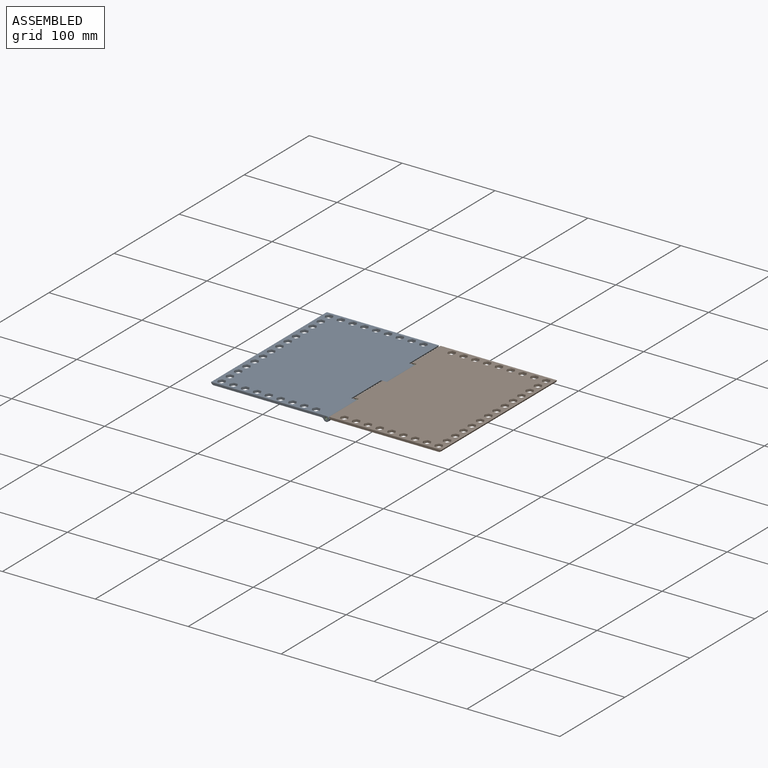
[diagram: assembled view]
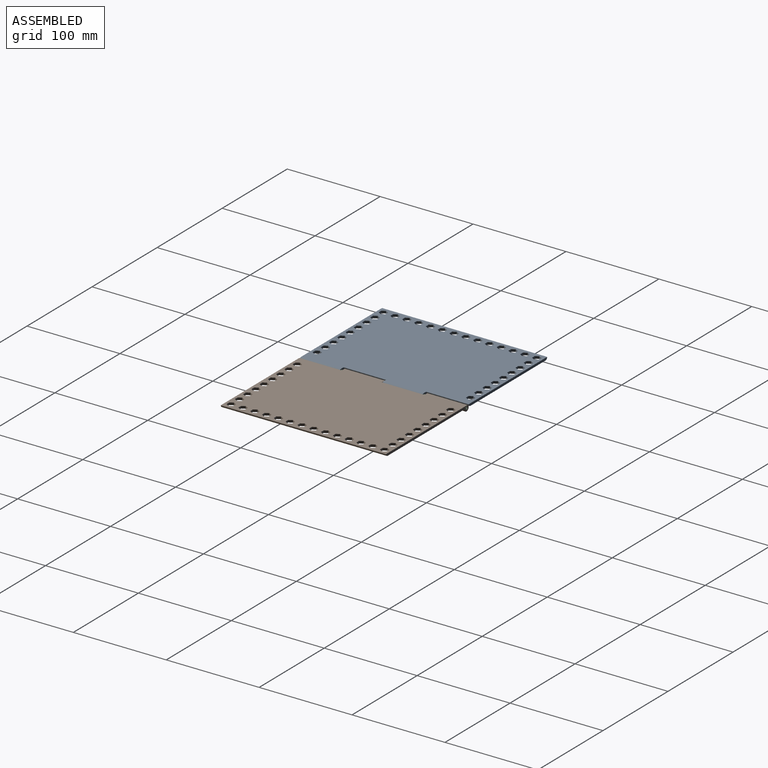
[diagram: assembled view, second angle]
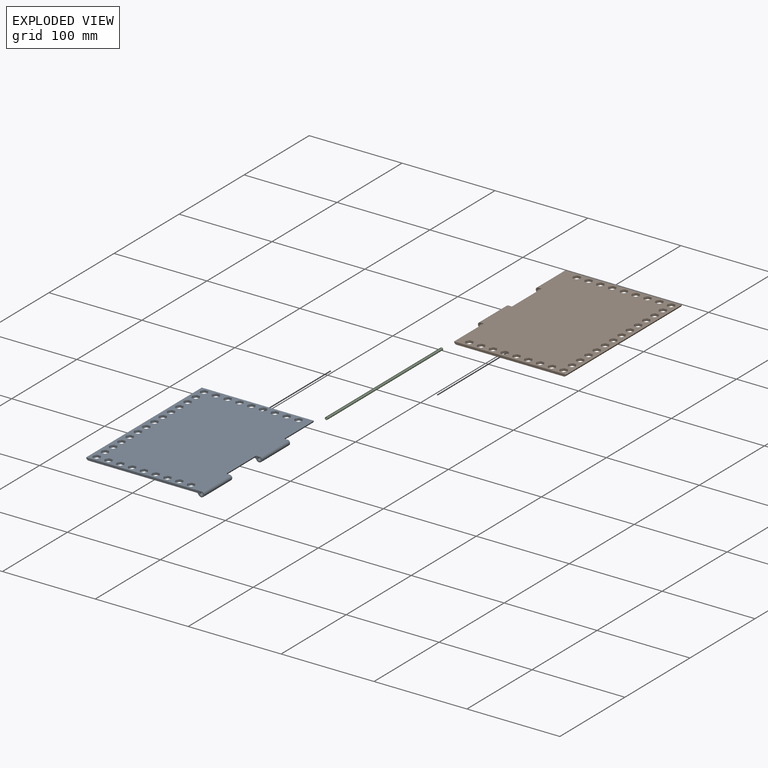
[diagram: exploded view]
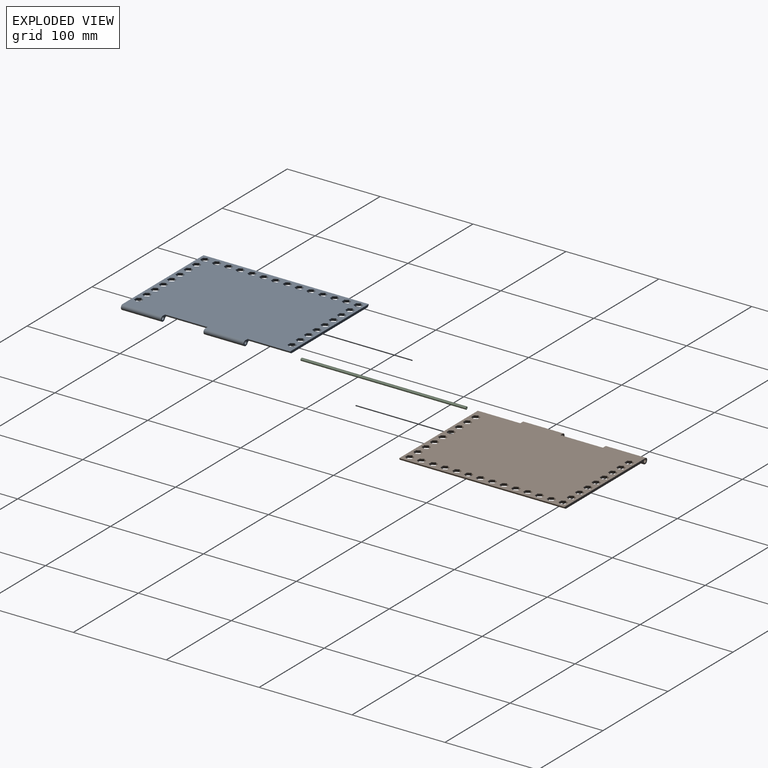
[diagram: exploded view, second angle]
ASSEMBLY  parts=3 mates=2
PART A: 203 faces, bbox 127x177.8x5.7 mm
  f0: plane 101.6x1.73mm, normal (0,1,0), area 175.5mm2, adj f1,f3,f4,f202
  f1: plane 152.4x1.73mm, normal (1,0,0), area 263.2mm2, adj f0,f2,f4,f202
  f2: plane 101.6x1.73mm, normal (0,-1,0), area 175.5mm2, adj f1,f3,f4,f202
  f3: plane 152.4x1.73mm, normal (-1,0,0), area 263.2mm2, adj f0,f2,f4,f202
  f4: plane 177.8x116.17mm, normal (0,0,-1), area 3777.4mm2, adj f0,f1,f2,f3,f6,f8,f9,f10
  f5: plane 177.8x124.46mm, normal (0,0,1), area 20442.1mm2, adj f6,f8,f9,f10,f11,f15,f16,f19
  f6: plane 127x5.72mm, normal (0,-1,0), area 326.3mm2, adj f4,f5,f7,f14,f18,f19,f21
  f7: cylinder r=3.17mm len=43.18mm, axis (0,1,0), area 367.6mm2, adj f6,f8,f18,f21
  f8: plane 8.89x5.72mm, normal (0,1,0), area 22.6mm2, adj f4,f5,f7,f14,f15,f18,f21
  f9: plane 120.65x2.54mm, normal (0,1,0), area 303.7mm2, adj f4,f5,f16,f19
  f10: plane 8.89x5.72mm, normal (0,-1,0), area 22.6mm2, adj f4,f5,f12,f13,f15,f17,f20
  f11: plane 8.89x5.72mm, normal (0,1,0), area 22.6mm2, adj f4,f5,f12,f13,f16,f17,f20
  f12: cylinder r=3.17mm len=43.18mm, axis (0,1,0), area 367.6mm2, adj f10,f11,f17,f20
  f13: cylinder r=1.78mm len=43.18mm, axis (0,1,0), area 482.4mm2, adj f10,f11
  f14: cylinder r=1.78mm len=43.18mm, axis (0,1,0), area 482.4mm2, adj f6,f8
  f15: cylinder r=2.54mm len=45.72mm, axis (0,1,0), area 182.4mm2, adj f4,f5,f8,f10
  f16: cylinder r=2.54mm len=45.72mm, axis (0,1,0), area 182.4mm2, adj f4,f5,f9,f11
  f17: cylinder r=2.54mm len=43.18mm, axis (0,1,0), area 121.8mm2, adj f4,f10,f11,f12
  f18: cylinder r=2.54mm len=43.18mm, axis (0,1,0), area 121.8mm2, adj f4,f6,f7,f8
  f19: cylinder r=2.54mm len=177.8mm, axis (0,-1,0), area 709.4mm2, adj f4,f5,f6,f9
  f20: cylinder r=2.54mm len=43.18mm, axis (0,-1,0), area 172.3mm2, adj f5,f10,f11,f12
  f21: cylinder r=2.54mm len=43.18mm, axis (0,-1,0), area 172.3mm2, adj f5,f6,f7,f8
  f22: plane 4.14x2.54mm, normal (0,1,0), area 10.5mm2, adj f4,f5,f23,f27
  f23: plane 3.59x2.54mm, normal (0.87,0.5,0), area 10.5mm2, adj f4,f5,f22,f24
  f24: plane 3.59x2.54mm, normal (0.87,-0.5,0), area 10.5mm2, adj f4,f5,f23,f25
  f25: plane 4.14x2.54mm, normal (0,-1,0), area 10.5mm2, adj f4,f5,f24,f26
  f26: plane 3.59x2.54mm, normal (-0.87,-0.5,0), area 10.5mm2, adj f4,f5,f25,f27
  f27: plane 3.59x2.54mm, normal (-0.87,0.5,0), area 10.5mm2, adj f4,f5,f22,f26
  f28: plane 3.59x2.54mm, normal (-0.87,-0.5,0), area 10.5mm2, adj f4,f5,f29,f33
  f29: plane 3.59x2.54mm, normal (-0.87,0.5,0), area 10.5mm2, adj f4,f5,f28,f30
  f30: plane 4.14x2.54mm, normal (0,1,0), area 10.5mm2, adj f4,f5,f29,f31
  f31: plane 3.59x2.54mm, normal (0.87,0.5,0), area 10.5mm2, adj f4,f5,f30,f32
  f32: plane 3.59x2.54mm, normal (0.87,-0.5,0), area 10.5mm2, adj f4,f5,f31,f33
  f33: plane 4.14x2.54mm, normal (0,-1,0), area 10.5mm2, adj f4,f5,f28,f32
  f34: plane 3.59x2.54mm, normal (-0.87,-0.5,0), area 10.5mm2, adj f4,f5,f35,f39
  f35: plane 3.59x2.54mm, normal (-0.87,0.5,0), area 10.5mm2, adj f4,f5,f34,f36
  f36: plane 4.14x2.54mm, normal (0,1,0), area 10.5mm2, adj f4,f5,f35,f37
  f37: plane 3.59x2.54mm, normal (0.87,0.5,0), area 10.5mm2, adj f4,f5,f36,f38
  f38: plane 3.59x2.54mm, normal (0.87,-0.5,0), area 10.5mm2, adj f4,f5,f37,f39
  f39: plane 4.14x2.54mm, normal (0,-1,0), area 10.5mm2, adj f4,f5,f34,f38
  f40: plane 3.59x2.54mm, normal (-0.87,-0.5,0), area 10.5mm2, adj f4,f5,f41,f45
  f41: plane 3.59x2.54mm, normal (-0.87,0.5,0), area 10.5mm2, adj f4,f5,f40,f42
  f42: plane 4.14x2.54mm, normal (0,1,0), area 10.5mm2, adj f4,f5,f41,f43
  f43: plane 3.59x2.54mm, normal (0.87,0.5,0), area 10.5mm2, adj f4,f5,f42,f44
  f44: plane 3.59x2.54mm, normal (0.87,-0.5,0), area 10.5mm2, adj f4,f5,f43,f45
  f45: plane 4.14x2.54mm, normal (0,-1,0), area 10.5mm2, adj f4,f5,f40,f44
  f46: plane 3.59x2.54mm, normal (-0.87,-0.5,0), area 10.5mm2, adj f4,f5,f47,f51
  f47: plane 3.59x2.54mm, normal (-0.87,0.5,0), area 10.5mm2, adj f4,f5,f46,f48
  f48: plane 4.14x2.54mm, normal (0,1,0), area 10.5mm2, adj f4,f5,f47,f49
  f49: plane 3.59x2.54mm, normal (0.87,0.5,0), area 10.5mm2, adj f4,f5,f48,f50
  f50: plane 3.59x2.54mm, normal (0.87,-0.5,0), area 10.5mm2, adj f4,f5,f49,f51
  f51: plane 4.14x2.54mm, normal (0,-1,0), area 10.5mm2, adj f4,f5,f46,f50
  f52: plane 3.59x2.54mm, normal (-0.87,-0.5,0), area 10.5mm2, adj f4,f5,f53,f57
  f53: plane 3.59x2.54mm, normal (-0.87,0.5,0), area 10.5mm2, adj f4,f5,f52,f54
  f54: plane 4.14x2.54mm, normal (0,1,0), area 10.5mm2, adj f4,f5,f53,f55
  f55: plane 3.59x2.54mm, normal (0.87,0.5,0), area 10.5mm2, adj f4,f5,f54,f56
  f56: plane 3.59x2.54mm, normal (0.87,-0.5,0), area 10.5mm2, adj f4,f5,f55,f57
  f57: plane 4.14x2.54mm, normal (0,-1,0), area 10.5mm2, adj f4,f5,f52,f56
  f58: plane 3.59x2.54mm, normal (-0.87,-0.5,0), area 10.5mm2, adj f4,f5,f59,f63
  f59: plane 3.59x2.54mm, normal (-0.87,0.5,0), area 10.5mm2, adj f4,f5,f58,f60
  f60: plane 4.14x2.54mm, normal (0,1,0), area 10.5mm2, adj f4,f5,f59,f61
  f61: plane 3.59x2.54mm, normal (0.87,0.5,0), area 10.5mm2, adj f4,f5,f60,f62
  f62: plane 3.59x2.54mm, normal (0.87,-0.5,0), area 10.5mm2, adj f4,f5,f61,f63
  f63: plane 4.14x2.54mm, normal (0,-1,0), area 10.5mm2, adj f4,f5,f58,f62
  f64: plane 3.59x2.54mm, normal (-0.87,-0.5,0), area 10.5mm2, adj f4,f5,f65,f69
  f65: plane 3.59x2.54mm, normal (-0.87,0.5,0), area 10.5mm2, adj f4,f5,f64,f66
  f66: plane 4.14x2.54mm, normal (0,1,0), area 10.5mm2, adj f4,f5,f65,f67
  f67: plane 3.59x2.54mm, normal (0.87,0.5,0), area 10.5mm2, adj f4,f5,f66,f68
  f68: plane 3.59x2.54mm, normal (0.87,-0.5,0), area 10.5mm2, adj f4,f5,f67,f69
  f69: plane 4.14x2.54mm, normal (0,-1,0), area 10.5mm2, adj f4,f5,f64,f68
  f70: plane 3.59x2.54mm, normal (-0.87,-0.5,0), area 10.5mm2, adj f4,f5,f71,f75
  f71: plane 3.59x2.54mm, normal (-0.87,0.5,0), area 10.5mm2, adj f4,f5,f70,f72
  f72: plane 4.14x2.54mm, normal (0,1,0), area 10.5mm2, adj f4,f5,f71,f73
  f73: plane 3.59x2.54mm, normal (0.87,0.5,0), area 10.5mm2, adj f4,f5,f72,f74
  f74: plane 3.59x2.54mm, normal (0.87,-0.5,0), area 10.5mm2, adj f4,f5,f73,f75
  f75: plane 4.14x2.54mm, normal (0,-1,0), area 10.5mm2, adj f4,f5,f70,f74
  f76: plane 3.59x2.54mm, normal (0.87,-0.5,0), area 10.5mm2, adj f4,f5,f77,f81
  f77: plane 4.14x2.54mm, normal (0,-1,0), area 10.5mm2, adj f4,f5,f76,f78
  f78: plane 3.59x2.54mm, normal (-0.87,-0.5,0), area 10.5mm2, adj f4,f5,f77,f79
  f79: plane 3.59x2.54mm, normal (-0.87,0.5,0), area 10.5mm2, adj f4,f5,f78,f80
  f80: plane 4.14x2.54mm, normal (0,1,0), area 10.5mm2, adj f4,f5,f79,f81
  f81: plane 3.59x2.54mm, normal (0.87,0.5,0), area 10.5mm2, adj f4,f5,f76,f80
  f82: plane 3.59x2.54mm, normal (0.87,-0.5,0), area 10.5mm2, adj f4,f5,f83,f87
  f83: plane 4.14x2.54mm, normal (0,-1,0), area 10.5mm2, adj f4,f5,f82,f84
  f84: plane 3.59x2.54mm, normal (-0.87,-0.5,0), area 10.5mm2, adj f4,f5,f83,f85
  f85: plane 3.59x2.54mm, normal (-0.87,0.5,0), area 10.5mm2, adj f4,f5,f84,f86
  f86: plane 4.14x2.54mm, normal (0,1,0), area 10.5mm2, adj f4,f5,f85,f87
  f87: plane 3.59x2.54mm, normal (0.87,0.5,0), area 10.5mm2, adj f4,f5,f82,f86
  f88: plane 3.59x2.54mm, normal (0.87,-0.5,0), area 10.5mm2, adj f4,f5,f89,f93
  f89: plane 4.14x2.54mm, normal (0,-1,0), area 10.5mm2, adj f4,f5,f88,f90
  f90: plane 3.59x2.54mm, normal (-0.87,-0.5,0), area 10.5mm2, adj f4,f5,f89,f91
  f91: plane 3.59x2.54mm, normal (-0.87,0.5,0), area 10.5mm2, adj f4,f5,f90,f92
  f92: plane 4.14x2.54mm, normal (0,1,0), area 10.5mm2, adj f4,f5,f91,f93
  f93: plane 3.59x2.54mm, normal (0.87,0.5,0), area 10.5mm2, adj f4,f5,f88,f92
  f94: plane 3.59x2.54mm, normal (0.87,-0.5,0), area 10.5mm2, adj f4,f5,f95,f99
  f95: plane 4.14x2.54mm, normal (0,-1,0), area 10.5mm2, adj f4,f5,f94,f96
  f96: plane 3.59x2.54mm, normal (-0.87,-0.5,0), area 10.5mm2, adj f4,f5,f95,f97
  f97: plane 3.59x2.54mm, normal (-0.87,0.5,0), area 10.5mm2, adj f4,f5,f96,f98
  f98: plane 4.14x2.54mm, normal (0,1,0), area 10.5mm2, adj f4,f5,f97,f99
  f99: plane 3.59x2.54mm, normal (0.87,0.5,0), area 10.5mm2, adj f4,f5,f94,f98
  f100: plane 3.59x2.54mm, normal (0.87,-0.5,0), area 10.5mm2, adj f4,f5,f101,f105
  f101: plane 4.14x2.54mm, normal (0,-1,0), area 10.5mm2, adj f4,f5,f100,f102
  f102: plane 3.59x2.54mm, normal (-0.87,-0.5,0), area 10.5mm2, adj f4,f5,f101,f103
  f103: plane 3.59x2.54mm, normal (-0.87,0.5,0), area 10.5mm2, adj f4,f5,f102,f104
  f104: plane 4.14x2.54mm, normal (0,1,0), area 10.5mm2, adj f4,f5,f103,f105
  f105: plane 3.59x2.54mm, normal (0.87,0.5,0), area 10.5mm2, adj f4,f5,f100,f104
  f106: plane 3.59x2.54mm, normal (0.87,-0.5,0), area 10.5mm2, adj f4,f5,f107,f111
  f107: plane 4.14x2.54mm, normal (0,-1,0), area 10.5mm2, adj f4,f5,f106,f108
  f108: plane 3.59x2.54mm, normal (-0.87,-0.5,0), area 10.5mm2, adj f4,f5,f107,f109
  f109: plane 3.59x2.54mm, normal (-0.87,0.5,0), area 10.5mm2, adj f4,f5,f108,f110
  f110: plane 4.14x2.54mm, normal (0,1,0), area 10.5mm2, adj f4,f5,f109,f111
  f111: plane 3.59x2.54mm, normal (0.87,0.5,0), area 10.5mm2, adj f4,f5,f106,f110
  f112: plane 3.59x2.54mm, normal (0.87,-0.5,0), area 10.5mm2, adj f4,f5,f113,f117
  f113: plane 4.14x2.54mm, normal (0,-1,0), area 10.5mm2, adj f4,f5,f112,f114
  f114: plane 3.59x2.54mm, normal (-0.87,-0.5,0), area 10.5mm2, adj f4,f5,f113,f115
  f115: plane 3.59x2.54mm, normal (-0.87,0.5,0), area 10.5mm2, adj f4,f5,f114,f116
  f116: plane 4.14x2.54mm, normal (0,1,0), area 10.5mm2, adj f4,f5,f115,f117
  f117: plane 3.59x2.54mm, normal (0.87,0.5,0), area 10.5mm2, adj f4,f5,f112,f116
  f118: plane 3.59x2.54mm, normal (0.87,-0.5,0), area 10.5mm2, adj f4,f5,f119,f123
  f119: plane 4.14x2.54mm, normal (0,-1,0), area 10.5mm2, adj f4,f5,f118,f120
  f120: plane 3.59x2.54mm, normal (-0.87,-0.5,0), area 10.5mm2, adj f4,f5,f119,f121
  f121: plane 3.59x2.54mm, normal (-0.87,0.5,0), area 10.5mm2, adj f4,f5,f120,f122
  f122: plane 4.14x2.54mm, normal (0,1,0), area 10.5mm2, adj f4,f5,f121,f123
  f123: plane 3.59x2.54mm, normal (0.87,0.5,0), area 10.5mm2, adj f4,f5,f118,f122
  f124: plane 3.59x2.54mm, normal (0.87,0.5,0), area 10.5mm2, adj f4,f5,f125,f129
  f125: plane 3.59x2.54mm, normal (0.87,-0.5,0), area 10.5mm2, adj f4,f5,f124,f126
  f126: plane 4.14x2.54mm, normal (0,-1,0), area 10.5mm2, adj f4,f5,f125,f127
  f127: plane 3.59x2.54mm, normal (-0.87,-0.5,0), area 10.5mm2, adj f4,f5,f126,f128
  f128: plane 3.59x2.54mm, normal (-0.87,0.5,0), area 10.5mm2, adj f4,f5,f127,f129
  f129: plane 4.14x2.54mm, normal (0,1,0), area 10.5mm2, adj f4,f5,f124,f128
  f130: plane 3.59x2.54mm, normal (0.87,-0.5,0), area 10.5mm2, adj f4,f5,f131,f135
  f131: plane 4.14x2.54mm, normal (0,-1,0), area 10.5mm2, adj f4,f5,f130,f132
  f132: plane 3.59x2.54mm, normal (-0.87,-0.5,0), area 10.5mm2, adj f4,f5,f131,f133
  f133: plane 3.59x2.54mm, normal (-0.87,0.5,0), area 10.5mm2, adj f4,f5,f132,f134
  f134: plane 4.14x2.54mm, normal (0,1,0), area 10.5mm2, adj f4,f5,f133,f135
  f135: plane 3.59x2.54mm, normal (0.87,0.5,0), area 10.5mm2, adj f4,f5,f130,f134
  f136: plane 3.59x2.54mm, normal (-0.87,-0.5,0), area 10.5mm2, adj f4,f5,f137,f141
  f137: plane 3.59x2.54mm, normal (-0.87,0.5,0), area 10.5mm2, adj f4,f5,f136,f138
  f138: plane 4.14x2.54mm, normal (0,1,0), area 10.5mm2, adj f4,f5,f137,f139
  f139: plane 3.59x2.54mm, normal (0.87,0.5,0), area 10.5mm2, adj f4,f5,f138,f140
  f140: plane 3.59x2.54mm, normal (0.87,-0.5,0), area 10.5mm2, adj f4,f5,f139,f141
  f141: plane 4.14x2.54mm, normal (0,-1,0), area 10.5mm2, adj f4,f5,f136,f140
  f142: plane 3.59x2.54mm, normal (-0.87,0.5,0), area 10.5mm2, adj f4,f5,f143,f147
  f143: plane 4.14x2.54mm, normal (0,1,0), area 10.5mm2, adj f4,f5,f142,f144
  f144: plane 3.59x2.54mm, normal (0.87,0.5,0), area 10.5mm2, adj f4,f5,f143,f145
  f145: plane 3.59x2.54mm, normal (0.87,-0.5,0), area 10.5mm2, adj f4,f5,f144,f146
  f146: plane 4.14x2.54mm, normal (0,-1,0), area 10.5mm2, adj f4,f5,f145,f147
  f147: plane 3.59x2.54mm, normal (-0.87,-0.5,0), area 10.5mm2, adj f4,f5,f142,f146
  f148: plane 3.59x2.54mm, normal (0.87,-0.5,0), area 10.5mm2, adj f4,f5,f149,f153
  f149: plane 4.14x2.54mm, normal (0,-1,0), area 10.5mm2, adj f4,f5,f148,f150
  f150: plane 3.59x2.54mm, normal (-0.87,-0.5,0), area 10.5mm2, adj f4,f5,f149,f151
  f151: plane 3.59x2.54mm, normal (-0.87,0.5,0), area 10.5mm2, adj f4,f5,f150,f152
  f152: plane 4.14x2.54mm, normal (0,1,0), area 10.5mm2, adj f4,f5,f151,f153
  f153: plane 3.59x2.54mm, normal (0.87,0.5,0), area 10.5mm2, adj f4,f5,f148,f152
  f154: plane 3.59x2.54mm, normal (-0.87,-0.5,0), area 10.5mm2, adj f4,f5,f155,f159
  f155: plane 3.59x2.54mm, normal (-0.87,0.5,0), area 10.5mm2, adj f4,f5,f154,f156
  f156: plane 4.14x2.54mm, normal (0,1,0), area 10.5mm2, adj f4,f5,f155,f157
  f157: plane 3.59x2.54mm, normal (0.87,0.5,0), area 10.5mm2, adj f4,f5,f156,f158
  f158: plane 3.59x2.54mm, normal (0.87,-0.5,0), area 10.5mm2, adj f4,f5,f157,f159
  f159: plane 4.14x2.54mm, normal (0,-1,0), area 10.5mm2, adj f4,f5,f154,f158
  f160: plane 3.59x2.54mm, normal (-0.87,-0.5,0), area 10.5mm2, adj f4,f5,f161,f165
  f161: plane 3.59x2.54mm, normal (-0.87,0.5,0), area 10.5mm2, adj f4,f5,f160,f162
  f162: plane 4.14x2.54mm, normal (0,1,0), area 10.5mm2, adj f4,f5,f161,f163
  f163: plane 3.59x2.54mm, normal (0.87,0.5,0), area 10.5mm2, adj f4,f5,f162,f164
  f164: plane 3.59x2.54mm, normal (0.87,-0.5,0), area 10.5mm2, adj f4,f5,f163,f165
  f165: plane 4.14x2.54mm, normal (0,-1,0), area 10.5mm2, adj f4,f5,f160,f164
  f166: plane 3.59x2.54mm, normal (0.87,0.5,0), area 10.5mm2, adj f4,f5,f167,f171
  f167: plane 3.59x2.54mm, normal (0.87,-0.5,0), area 10.5mm2, adj f4,f5,f166,f168
  f168: plane 4.14x2.54mm, normal (0,-1,0), area 10.5mm2, adj f4,f5,f167,f169
  f169: plane 3.59x2.54mm, normal (-0.87,-0.5,0), area 10.5mm2, adj f4,f5,f168,f170
  f170: plane 3.59x2.54mm, normal (-0.87,0.5,0), area 10.5mm2, adj f4,f5,f169,f171
  f171: plane 4.14x2.54mm, normal (0,1,0), area 10.5mm2, adj f4,f5,f166,f170
  f172: plane 3.59x2.54mm, normal (-0.87,0.5,0), area 10.5mm2, adj f4,f5,f173,f177
  f173: plane 4.14x2.54mm, normal (0,1,0), area 10.5mm2, adj f4,f5,f172,f174
  f174: plane 3.59x2.54mm, normal (0.87,0.5,0), area 10.5mm2, adj f4,f5,f173,f175
  f175: plane 3.59x2.54mm, normal (0.87,-0.5,0), area 10.5mm2, adj f4,f5,f174,f176
  f176: plane 4.14x2.54mm, normal (0,-1,0), area 10.5mm2, adj f4,f5,f175,f177
  f177: plane 3.59x2.54mm, normal (-0.87,-0.5,0), area 10.5mm2, adj f4,f5,f172,f176
  f178: plane 3.59x2.54mm, normal (0.87,-0.5,0), area 10.5mm2, adj f4,f5,f179,f183
  f179: plane 4.14x2.54mm, normal (0,-1,0), area 10.5mm2, adj f4,f5,f178,f180
  f180: plane 3.59x2.54mm, normal (-0.87,-0.5,0), area 10.5mm2, adj f4,f5,f179,f181
  f181: plane 3.59x2.54mm, normal (-0.87,0.5,0), area 10.5mm2, adj f4,f5,f180,f182
  f182: plane 4.14x2.54mm, normal (0,1,0), area 10.5mm2, adj f4,f5,f181,f183
  f183: plane 3.59x2.54mm, normal (0.87,0.5,0), area 10.5mm2, adj f4,f5,f178,f182
  f184: plane 3.59x2.54mm, normal (0.87,-0.5,0), area 10.5mm2, adj f4,f5,f185,f189
  f185: plane 4.14x2.54mm, normal (0,-1,0), area 10.5mm2, adj f4,f5,f184,f186
  f186: plane 3.59x2.54mm, normal (-0.87,-0.5,0), area 10.5mm2, adj f4,f5,f185,f187
  f187: plane 3.59x2.54mm, normal (-0.87,0.5,0), area 10.5mm2, adj f4,f5,f186,f188
  f188: plane 4.14x2.54mm, normal (0,1,0), area 10.5mm2, adj f4,f5,f187,f189
  f189: plane 3.59x2.54mm, normal (0.87,0.5,0), area 10.5mm2, adj f4,f5,f184,f188
  f190: plane 3.59x2.54mm, normal (0.87,-0.5,0), area 10.5mm2, adj f4,f5,f191,f195
  f191: plane 4.14x2.54mm, normal (0,-1,0), area 10.5mm2, adj f4,f5,f190,f192
  f192: plane 3.59x2.54mm, normal (-0.87,-0.5,0), area 10.5mm2, adj f4,f5,f191,f193
  f193: plane 3.59x2.54mm, normal (-0.87,0.5,0), area 10.5mm2, adj f4,f5,f192,f194
  f194: plane 4.14x2.54mm, normal (0,1,0), area 10.5mm2, adj f4,f5,f193,f195
  f195: plane 3.59x2.54mm, normal (0.87,0.5,0), area 10.5mm2, adj f4,f5,f190,f194
  f196: plane 3.59x2.54mm, normal (0.87,-0.5,0), area 10.5mm2, adj f4,f5,f197,f201
  f197: plane 4.14x2.54mm, normal (0,-1,0), area 10.5mm2, adj f4,f5,f196,f198
  f198: plane 3.59x2.54mm, normal (-0.87,-0.5,0), area 10.5mm2, adj f4,f5,f197,f199
  f199: plane 3.59x2.54mm, normal (-0.87,0.5,0), area 10.5mm2, adj f4,f5,f198,f200
  f200: plane 4.14x2.54mm, normal (0,1,0), area 10.5mm2, adj f4,f5,f199,f201
  f201: plane 3.59x2.54mm, normal (0.87,0.5,0), area 10.5mm2, adj f4,f5,f196,f200
  f202: plane 152.4x101.6mm, normal (0,0,-1), area 15483.8mm2, adj f0,f1,f2,f3
PART B: same geometry as A
PART C: 6 faces, bbox 2.9x177.8x2.9 mm
  f0: cylinder r=1.46mm len=177.8mm, axis (0,-1,0), area 1485.1mm2, adj f1,f2,f3,f5
  f1: plane 2.92x2.86mm, normal (0,1,0), area 4.1mm2, adj f0,f3,f4,f5
  f2: plane 2.92x2.86mm, normal (0,-1,0), area 4.1mm2, adj f0,f3,f4,f5
  f3: plane 177.8x0.71mm, normal (1,0,0), area 126.9mm2, adj f0,f1,f2,f4
  f4: cylinder r=0.8mm len=177.8mm, axis (0,-1,0), area 742.2mm2, adj f1,f2,f3,f5
  f5: plane 177.8x0.71mm, normal (-1,0,0), area 126.9mm2, adj f0,f1,f2,f4
PLACE A t=(18.43,-172.32,25.5)mm
PLACE B rot(axis=(0,0,-1),180deg) t=(37.48,-19.92,25.5)mm
PLACE C t=(18.43,-172.32,25.5)mm
MATE cylindrical A.f13 <-> C.f0  axis (0,-1,0) through (27.96,-185.02,25.5)mm
MATE fastened C.f0 <-> B.f13  axis (0,1,0) through (27.96,-7.22,25.5)mm
